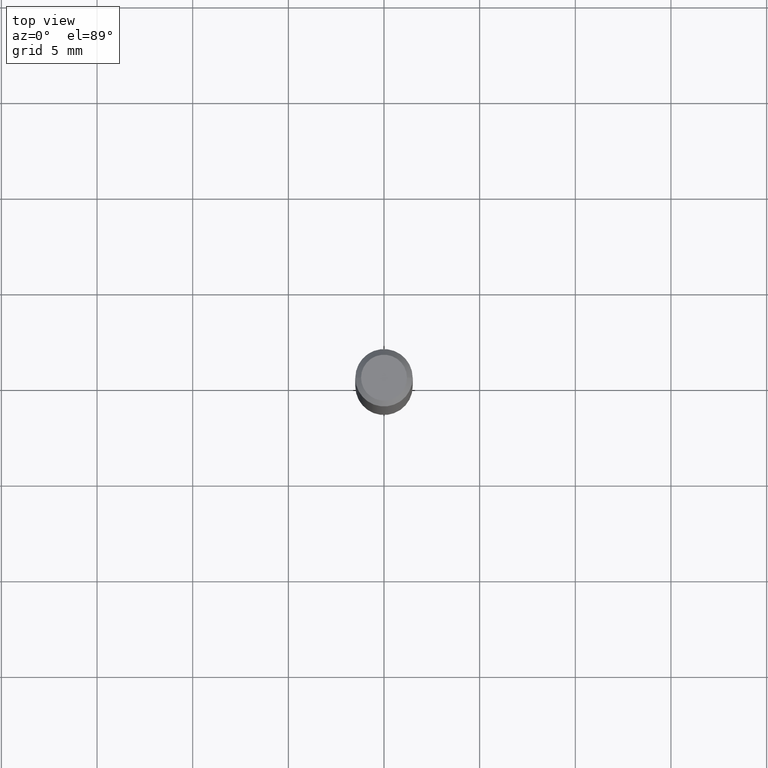
[diagram: clean part render]
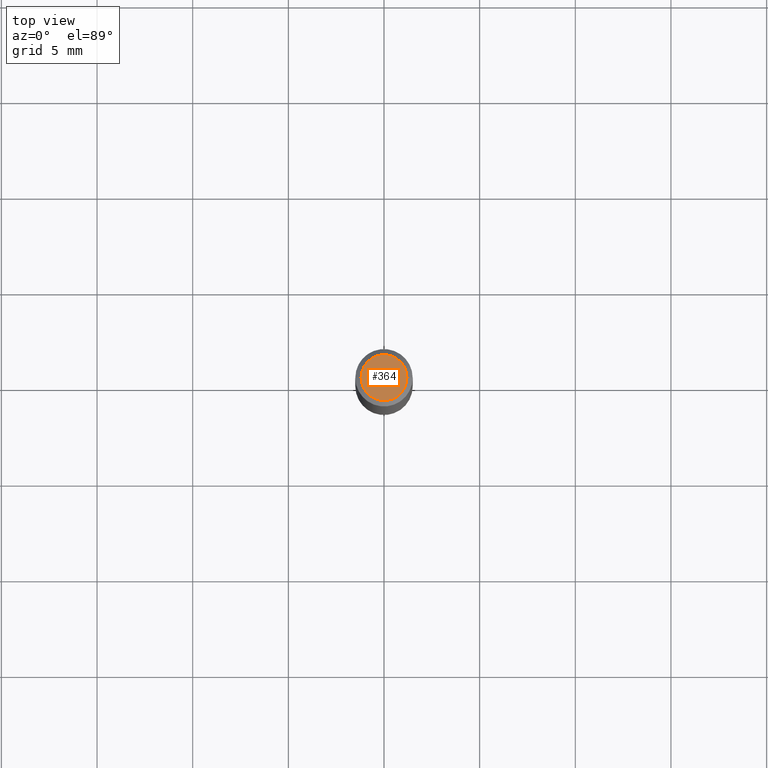
[diagram: same view with one face highlighted and labeled with its STEP entity id]
A machine part, top view. The second image highlights one B-rep face of the part: STEP entity #364.
In plain terms, the highlighted planar face has unit normal (0, -0, -1).
Its self-contained STEP definition (entity closure, byte-faithful):
#17 = DIRECTION ( 'NONE',  ( 2.438088387897960049E-29, -3.491481338843145188E-15, -1.000000000000000000 ) ) ;
#59 = VERTEX_POINT ( 'NONE', #407 ) ;
#93 = EDGE_CURVE ( 'NONE', #59, #324, #94, .T. ) ;
#94 = CIRCLE ( 'NONE', #150, 0.04724000000000000421 ) ;
#97 = DIRECTION ( 'NONE',  ( -1.000000000000000000, 6.982962677686265922E-15, -4.876176775795935793E-29 ) ) ;
#100 = CARTESIAN_POINT ( 'NONE',  ( -0.04724000000000000421, 3.504923541997677355E-16, -3.380025165670481712E-19 ) ) ;
#150 = AXIS2_PLACEMENT_3D ( 'NONE', #305, #454, #415 ) ;
#165 = PLANE ( 'NONE',  #452 ) ;
#198 = EDGE_LOOP ( 'NONE', ( #430, #350 ) ) ;
#265 = AXIS2_PLACEMENT_3D ( 'NONE', #369, #362, #288 ) ;
#285 = EDGE_CURVE ( 'NONE', #324, #59, #327, .T. ) ;
#288 = DIRECTION ( 'NONE',  ( 1.000000000000000000, -6.982962677686266711E-15, 4.876185090822587894E-29 ) ) ;
#305 = CARTESIAN_POINT ( 'NONE',  ( 8.265746106709734507E-48, -1.180129479067563789E-33, -3.380025165646692144E-19 ) ) ;
#324 = VERTEX_POINT ( 'NONE', #100 ) ;
#326 = FACE_OUTER_BOUND ( 'NONE', #198, .T. ) ;
#327 = CIRCLE ( 'NONE', #265, 0.04724000000000000421 ) ;
#350 = ORIENTED_EDGE ( 'NONE', *, *, #93, .T. ) ;
#362 = DIRECTION ( 'NONE',  ( -2.445468806185136597E-29, 3.491481338843145583E-15, 1.000000000000000000 ) ) ;
#364 = ADVANCED_FACE ( 'NONE', ( #326 ), #165, .F. ) ;
#369 = CARTESIAN_POINT ( 'NONE',  ( 8.265746106709734507E-48, -1.180129479067563789E-33, -3.380025165646692144E-19 ) ) ;
#407 = CARTESIAN_POINT ( 'NONE',  ( 0.04724000000000000421, -3.852183633974369345E-16, -3.380025165621689721E-19 ) ) ;
#415 = DIRECTION ( 'NONE',  ( 1.000000000000000000, -6.982962677686266711E-15, 4.876185090822587894E-29 ) ) ;
#430 = ORIENTED_EDGE ( 'NONE', *, *, #285, .T. ) ;
#452 = AXIS2_PLACEMENT_3D ( 'NONE', #478, #17, #97 ) ;
#454 = DIRECTION ( 'NONE',  ( -2.445468806185136597E-29, 3.491481338843145583E-15, 1.000000000000000000 ) ) ;
#478 = CARTESIAN_POINT ( 'NONE',  ( 4.132873053354867254E-48, -5.900647395337818946E-34, -1.690012582823346072E-19 ) ) ;